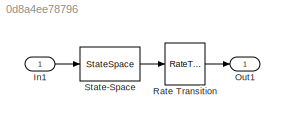
MODEL slx_0d8a4ee78796
KIND model
CONFIG AbsTol = auto
CONFIG EnableMultiTasking = off
CONFIG FixedStep = auto
CONFIG MaxStep = auto
CONFIG MinStep = auto
CONFIG RelTol = 1e-3
CONFIG SampleTimeConstraint = Unconstrained
CONFIG SolverName = VariableStepAuto
CONFIG StartTime = 0.0
CONFIG StopTime = 10.0
BLOCK [Inport] In1
BLOCK [Outport] Out1
BLOCK [RateTransition] Rate Transition
  OutPortSampleTime = 0.01
BLOCK [StateSpace] State-Space
  A = -eye(2)
  B = [0;1]
  C = [-4,0;0,-0.14]
  D = [0;0]
  InitialCondition = [1;1]
  Ports = [1, 1]
LINE In1:1 -> State-Space:1
LINE Rate Transition:1 -> Out1:1
LINE State-Space:1 -> Rate Transition:1
